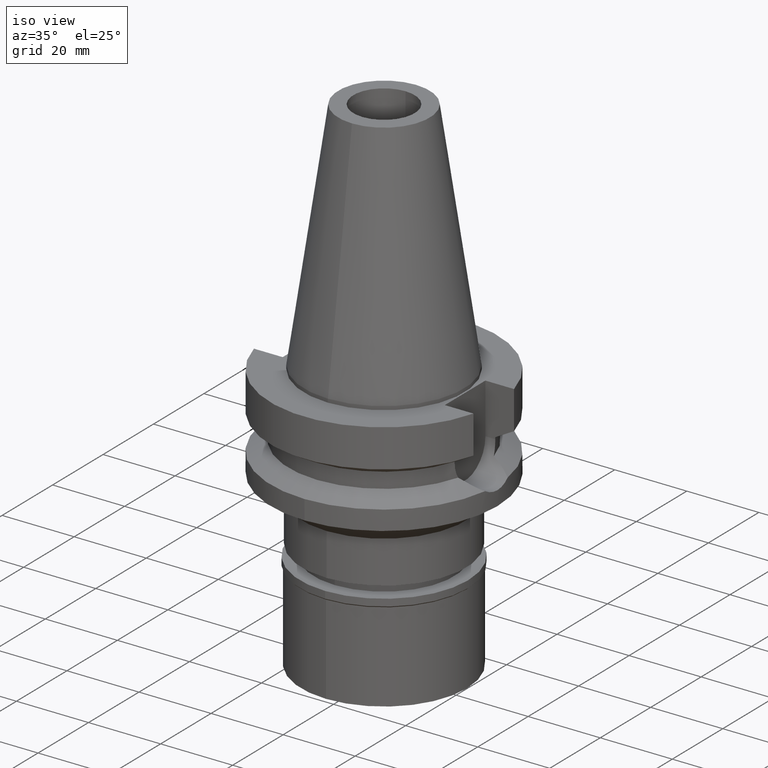
[diagram: clean part render]
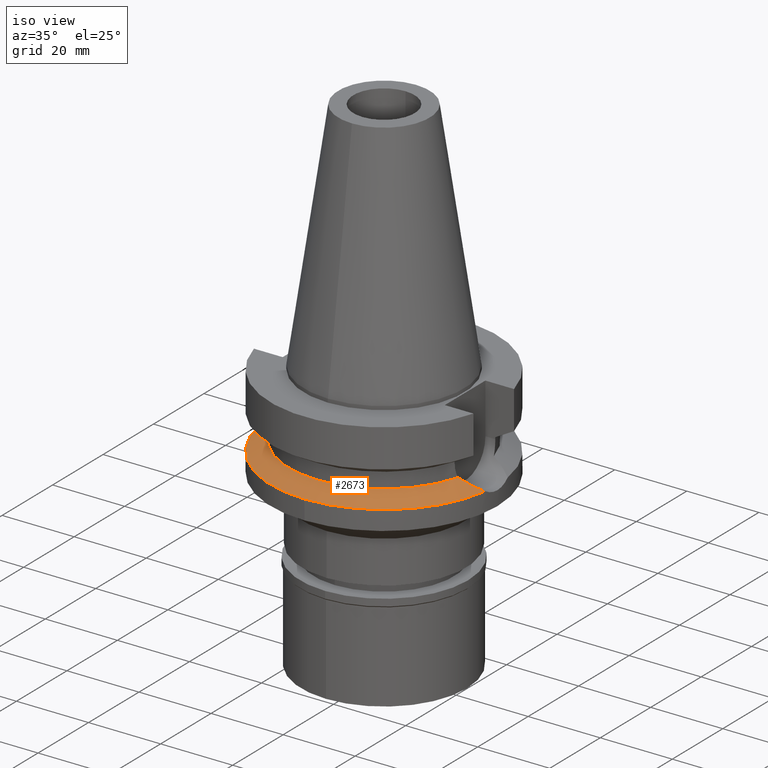
[diagram: same view with one face highlighted and labeled with its STEP entity id]
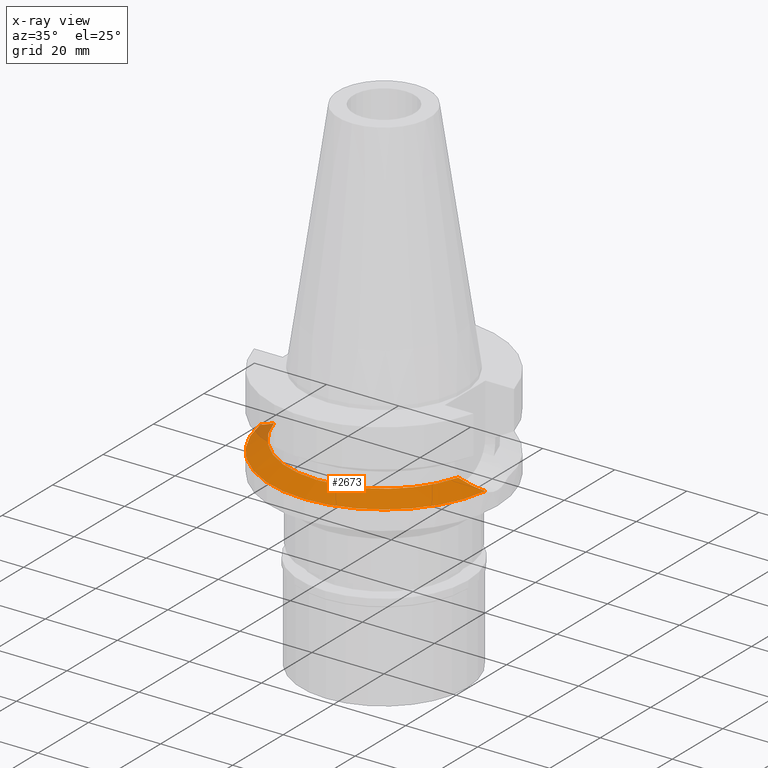
[diagram: x-ray of the same camera — body ghosted, the highlighted face saturated]
A machine part, iso view. The second image highlights one B-rep face of the part: STEP entity #2673.
The next image is the same camera in x-ray: the body ghosted, the highlighted face saturated — about 3% of this face is hidden behind the body in this view.
In plain terms, the highlighted conical surface has half-angle 60 deg.
Its self-contained STEP definition (entity closure, byte-faithful):
#10 = CIRCLE ( 'NONE', #883, 31.50000000000001421 ) ;
#20 = EDGE_LOOP ( 'NONE', ( #2847, #2429, #2585, #63, #414 ) ) ;
#63 = ORIENTED_EDGE ( 'NONE', *, *, #774, .F. ) ;
#117 = CARTESIAN_POINT ( 'NONE',  ( 28.79615733656286736, -5.906602492357484024, -20.41956219318633714 ) ) ;
#118 = DIRECTION ( 'NONE',  ( 0.0000000000000000000, 0.0000000000000000000, -1.000000000000000000 ) ) ;
#122 = VERTEX_POINT ( 'NONE', #2121 ) ;
#136 = CARTESIAN_POINT ( 'NONE',  ( 0.0000000000000000000, 0.0000000000000000000, -21.63449434733000132 ) ) ;
#169 = DIRECTION ( 'NONE',  ( 0.0000000000000000000, 0.0000000000000000000, 1.000000000000000000 ) ) ;
#364 = CARTESIAN_POINT ( 'NONE',  ( 27.59992770683196284, -6.421000543092000079, -19.80837600532818144 ) ) ;
#400 = VERTEX_POINT ( 'NONE', #2073 ) ;
#414 = ORIENTED_EDGE ( 'NONE', *, *, #847, .F. ) ;
#446 = CARTESIAN_POINT ( 'NONE',  ( -31.17899877608999759, -4.485536235554000051, -21.63449434733000132 ) ) ;
#491 = CONICAL_SURFACE ( 'NONE', #2200, 29.00000000000000000, 1.047197551196400456 ) ;
#530 = VERTEX_POINT ( 'NONE', #1438 ) ;
#538 = B_SPLINE_CURVE_WITH_KNOTS ( 'NONE', 3,
 ( #1748, #2742, #1504, #364, #1270, #1979, #629, #1807, #1520, #117, #2728, #2944, #1316 ),
 .UNSPECIFIED., .F., .F.,
 ( 4, 2, 2, 1, 2, 2, 4 ),
 ( 0.0000000000000000000, 0.2499999999999944489, 0.3749999999999913403, 0.4374999999999897859, 0.4687499999999895639, 0.4999999999999893419, 1.000000000000000000 ),
 .UNSPECIFIED. ) ;
#610 = CARTESIAN_POINT ( 'NONE',  ( -25.53175183775000079, -7.097862220092999941, -18.74774300138999905 ) ) ;
#629 = CARTESIAN_POINT ( 'NONE',  ( 28.43524438619418149, -6.072933553799365392, -20.23526204130091699 ) ) ;
#647 = DIRECTION ( 'NONE',  ( 0.9898094849552905306, -0.1423979757318985240, 0.0000000000000000000 ) ) ;
#668 = CARTESIAN_POINT ( 'NONE',  ( -29.24460058614999269, -5.686810943672462315, -20.64854596748914162 ) ) ;
#678 = CARTESIAN_POINT ( 'NONE',  ( 25.53175183775000079, -7.097862220092999941, -18.74774300138999905 ) ) ;
#774 = EDGE_CURVE ( 'NONE', #122, #1530, #1707, .T. ) ;
#847 = EDGE_CURVE ( 'NONE', #400, #122, #1402, .T. ) ;
#883 = AXIS2_PLACEMENT_3D ( 'NONE', #2975, #1093, #647 ) ;
#915 = CARTESIAN_POINT ( 'NONE',  ( -30.85647201601464573, -4.730227175864956557, -21.47029792165835715 ) ) ;
#1084 = DIRECTION ( 'NONE',  ( -0.9634623335000935818, -0.2678438573619981722, 0.0000000000000000000 ) ) ;
#1093 = DIRECTION ( 'NONE',  ( 0.0000000000000000000, 0.0000000000000000000, -1.000000000000000000 ) ) ;
#1099 = CARTESIAN_POINT ( 'NONE',  ( 0.0000000000000000000, 0.0000000000000000000, -18.74774300138999905 ) ) ;
#1139 = CARTESIAN_POINT ( 'NONE',  ( -30.50166441928796246, -4.970323305538399516, -21.28968302487205477 ) ) ;
#1270 = CARTESIAN_POINT ( 'NONE',  ( 27.86576207268811345, -6.315687912391195979, -19.94430819287703827 ) ) ;
#1316 = CARTESIAN_POINT ( 'NONE',  ( 31.17899877608999759, -4.485536235554000051, -21.63449434733000132 ) ) ;
#1355 = CARTESIAN_POINT ( 'NONE',  ( -29.71941734336908070, -5.434399552458079263, -20.89086831148982171 ) ) ;
#1372 = CARTESIAN_POINT ( 'NONE',  ( -26.81503142586598543, -6.745110651199522245, -19.40702458863693636 ) ) ;
#1402 = B_SPLINE_CURVE_WITH_KNOTS ( 'NONE', 3,
 ( #446, #915, #1139, #1845, #1355, #2966, #668, #1603, #2082, #2254, #2551, #2520, #1372, #610 ),
 .UNSPECIFIED., .F., .F.,
 ( 4, 2, 2, 1, 1, 2, 2, 4 ),
 ( 0.0000000000000000000, 0.2500000000000051070, 0.3750000000000074385, 0.4375000000000079936, 0.4687500000000081601, 0.4843750000000083822, 0.5000000000000085487, 1.000000000000000000 ),
 .UNSPECIFIED. ) ;
#1423 = EDGE_CURVE ( 'NONE', #530, #1742, #10, .T. ) ;
#1424 = DIRECTION ( 'NONE',  ( 0.0000000000000000000, 0.0000000000000000000, -1.000000000000000000 ) ) ;
#1438 = CARTESIAN_POINT ( 'NONE',  ( 31.17899877608999759, -4.485536235554000051, -21.63449434733000132 ) ) ;
#1504 = CARTESIAN_POINT ( 'NONE',  ( 26.76968745535479144, -6.728311875692923216, -19.38334871598836173 ) ) ;
#1520 = CARTESIAN_POINT ( 'NONE',  ( 28.73548221364531585, -5.935153532556571854, -20.38857912865524469 ) ) ;
#1530 = VERTEX_POINT ( 'NONE', #678 ) ;
#1603 = CARTESIAN_POINT ( 'NONE',  ( -29.05229973924029707, -5.782831716471616090, -20.55036289294531926 ) ) ;
#1707 = CIRCLE ( 'NONE', #2004, 26.49999999999998224 ) ;
#1742 = VERTEX_POINT ( 'NONE', #2684 ) ;
#1748 = CARTESIAN_POINT ( 'NONE',  ( 25.53175183775000079, -7.097862220092999941, -18.74774300138999905 ) ) ;
#1807 = CARTESIAN_POINT ( 'NONE',  ( 28.61620551151258240, -5.990396215524137702, -20.32767083175395229 ) ) ;
#1845 = CARTESIAN_POINT ( 'NONE',  ( -29.92103176922092445, -5.319725920818102693, -20.99370042124304092 ) ) ;
#1898 = FACE_OUTER_BOUND ( 'NONE', #20, .T. ) ;
#1979 = CARTESIAN_POINT ( 'NONE',  ( 28.24814504451789787, -6.154404706740463027, -20.13969505257211878 ) ) ;
#1990 = EDGE_CURVE ( 'NONE', #1742, #400, #2990, .T. ) ;
#2004 = AXIS2_PLACEMENT_3D ( 'NONE', #1099, #169, #1084 ) ;
#2073 = CARTESIAN_POINT ( 'NONE',  ( -31.17899877608999759, -4.485536235554000051, -21.63449434733000132 ) ) ;
#2082 = CARTESIAN_POINT ( 'NONE',  ( -28.96875021740119394, -5.823646076093710988, -20.50770046981470784 ) ) ;
#2121 = CARTESIAN_POINT ( 'NONE',  ( -25.53175183775000079, -7.097862220092999941, -18.74774300138999905 ) ) ;
#2200 = AXIS2_PLACEMENT_3D ( 'NONE', #2603, #1424, #2880 ) ;
#2254 = CARTESIAN_POINT ( 'NONE',  ( -28.91279834213878885, -5.850779281213396743, -20.47912922025741622 ) ) ;
#2405 = AXIS2_PLACEMENT_3D ( 'NONE', #136, #118, #2665 ) ;
#2429 = ORIENTED_EDGE ( 'NONE', *, *, #1423, .F. ) ;
#2520 = CARTESIAN_POINT ( 'NONE',  ( -27.92327020522327174, -6.323749860918009169, -19.97380980427648822 ) ) ;
#2551 = CARTESIAN_POINT ( 'NONE',  ( -28.88563061240308016, -5.863861218617807403, -20.46525589634797981 ) ) ;
#2585 = ORIENTED_EDGE ( 'NONE', *, *, #2922, .F. ) ;
#2603 = CARTESIAN_POINT ( 'NONE',  ( 0.0000000000000000000, 0.0000000000000000000, -20.19111867435999841 ) ) ;
#2665 = DIRECTION ( 'NONE',  ( 0.0000000000000000000, -1.000000000000000000, 0.0000000000000000000 ) ) ;
#2673 = ADVANCED_FACE ( 'NONE', ( #1898 ), #491, .T. ) ;
#2684 = CARTESIAN_POINT ( 'NONE',  ( 0.0000000000000000000, -31.50000000000000000, -21.63449434733000132 ) ) ;
#2728 = CARTESIAN_POINT ( 'NONE',  ( 29.75760095719284948, -5.447453188807350521, -20.91053959362412229 ) ) ;
#2742 = CARTESIAN_POINT ( 'NONE',  ( 26.17254441582493740, -6.921719320804777809, -19.07694853997510620 ) ) ;
#2847 = ORIENTED_EDGE ( 'NONE', *, *, #1990, .F. ) ;
#2880 = DIRECTION ( 'NONE',  ( 0.0000000000000000000, -1.000000000000000000, 0.0000000000000000000 ) ) ;
#2922 = EDGE_CURVE ( 'NONE', #1530, #530, #538, .T. ) ;
#2944 = CARTESIAN_POINT ( 'NONE',  ( 30.53302960133659738, -4.975612794621257606, -21.30563534174984497 ) ) ;
#2966 = CARTESIAN_POINT ( 'NONE',  ( -29.40489039084706135, -5.603207722304487604, -20.73036261131275637 ) ) ;
#2975 = CARTESIAN_POINT ( 'NONE',  ( 0.0000000000000000000, 0.0000000000000000000, -21.63449434733000132 ) ) ;
#2990 = CIRCLE ( 'NONE', #2405, 31.50000000000000000 ) ;